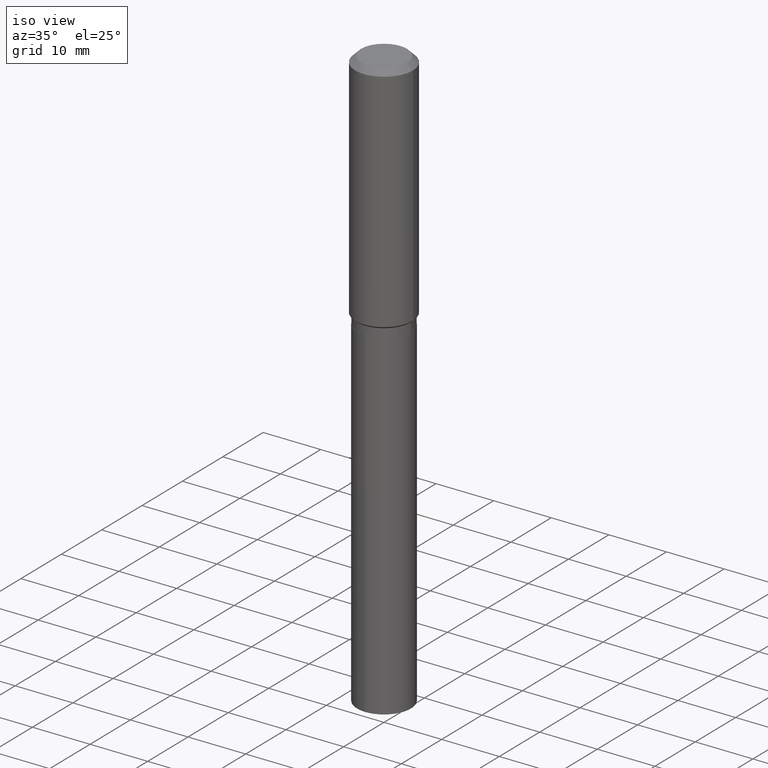
[diagram: clean part render]
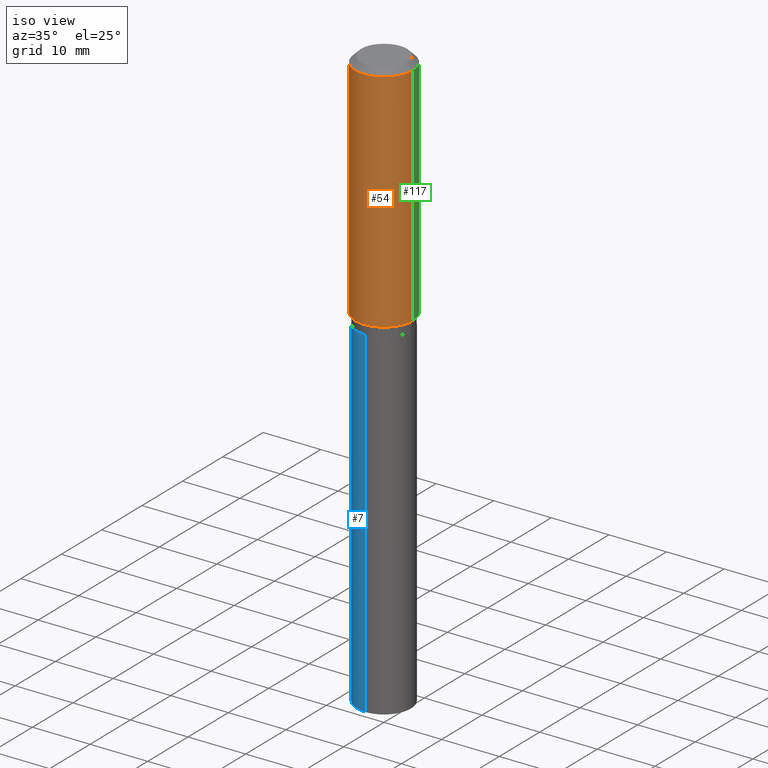
[diagram: same view with three faces highlighted in distinct colors, each labeled with its STEP entity id]
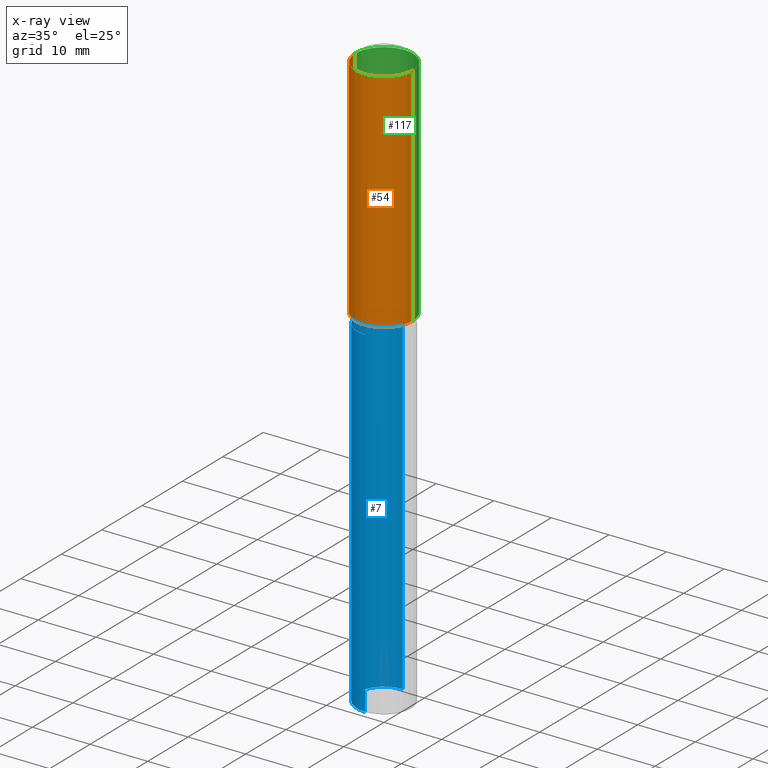
[diagram: x-ray of the same camera — body ghosted, the three highlighted faces saturated]
A machine part, iso view with three faces highlighted in distinct colors.
The next image is the same camera in x-ray (body ghosted, the three faces saturated) — at least one of them is partly hidden behind the body in this view.
Their STEP definitions:

[orange] entity #54 — the highlighted cylindrical surface (edge-blend (fillet) strip) has radius 5 mm, axis along (-0, 0, 1).
#32 = CIRCLE ( 'NONE', #450, 0.1968500000000002192 ) ;
#37 = CARTESIAN_POINT ( 'NONE',  ( -0.1968500000000000250, -1.436938108811090750E-15, -0.03937000000000029365 ) ) ;
#50 = AXIS2_PLACEMENT_3D ( 'NONE', #147, #64, #144 ) ;
#54 = ADVANCED_FACE ( 'NONE', ( #253 ), #487, .T. ) ;
#64 = DIRECTION ( 'NONE',  ( -2.445468806185136597E-29, 3.491481338843145583E-15, 1.000000000000000000 ) ) ;
#85 = CARTESIAN_POINT ( 'NONE',  ( 3.875945784363131396E-29, -5.533823347999442283E-15, -1.584949999999999637 ) ) ;
#94 = LINE ( 'NONE', #170, #96 ) ;
#96 = VECTOR ( 'NONE', #394, 39.37007874015748143 ) ;
#100 = VERTEX_POINT ( 'NONE', #221 ) ;
#101 = DIRECTION ( 'NONE',  ( 1.000000000000000000, -6.982962677686265922E-15, 0.000000000000000000 ) ) ;
#102 = DIRECTION ( 'NONE',  ( -2.445468806185136597E-29, 3.491481338843145583E-15, 1.000000000000000000 ) ) ;
#104 = DIRECTION ( 'NONE',  ( -2.445468806185136597E-29, 3.491481338843145583E-15, 1.000000000000000000 ) ) ;
#125 = DIRECTION ( 'NONE',  ( -2.445468806185136877E-29, 3.491481338843145188E-15, 1.000000000000000000 ) ) ;
#126 = VERTEX_POINT ( 'NONE', #37 ) ;
#130 = AXIS2_PLACEMENT_3D ( 'NONE', #265, #102, #372 ) ;
#144 = DIRECTION ( 'NONE',  ( 1.000000000000000000, -6.982962677686265922E-15, 0.000000000000000000 ) ) ;
#147 = CARTESIAN_POINT ( 'NONE',  ( 9.627810689950954155E-31, -1.374596203102556547E-16, -0.03937000000000029365 ) ) ;
#170 = CARTESIAN_POINT ( 'NONE',  ( 0.1968500000000001082, -1.374596203102542397E-15, 9.598753983154305062E-30 ) ) ;
#221 = CARTESIAN_POINT ( 'NONE',  ( 0.1968500000000000250, -1.512055823412797189E-15, -0.03937000000000029365 ) ) ;
#234 = CIRCLE ( 'NONE', #50, 0.1968500000000000250 ) ;
#238 = ORIENTED_EDGE ( 'NONE', *, *, #452, .T. ) ;
#251 = VERTEX_POINT ( 'NONE', #428 ) ;
#253 = FACE_OUTER_BOUND ( 'NONE', #336, .T. ) ;
#265 = CARTESIAN_POINT ( 'NONE',  ( 0.000000000000000000, 0.000000000000000000, 0.000000000000000000 ) ) ;
#316 = ORIENTED_EDGE ( 'NONE', *, *, #322, .F. ) ;
#322 = EDGE_CURVE ( 'NONE', #383, #126, #356, .T. ) ;
#323 = CARTESIAN_POINT ( 'NONE',  ( -0.1968500000000002192, -4.135119972655683706E-15, -1.584949999999999637 ) ) ;
#336 = EDGE_LOOP ( 'NONE', ( #316, #238, #471, #391 ) ) ;
#356 = LINE ( 'NONE', #473, #490 ) ;
#372 = DIRECTION ( 'NONE',  ( 1.000000000000000000, -6.982962677686266711E-15, 4.876176775795935793E-29 ) ) ;
#383 = VERTEX_POINT ( 'NONE', #323 ) ;
#391 = ORIENTED_EDGE ( 'NONE', *, *, #476, .F. ) ;
#394 = DIRECTION ( 'NONE',  ( -2.445468806185136877E-29, 3.491481338843145188E-15, 1.000000000000000000 ) ) ;
#405 = EDGE_CURVE ( 'NONE', #251, #100, #94, .T. ) ;
#428 = CARTESIAN_POINT ( 'NONE',  ( 0.1968500000000002192, -6.908419551101985469E-15, -1.584949999999999637 ) ) ;
#450 = AXIS2_PLACEMENT_3D ( 'NONE', #85, #104, #101 ) ;
#452 = EDGE_CURVE ( 'NONE', #383, #251, #32, .T. ) ;
#471 = ORIENTED_EDGE ( 'NONE', *, *, #405, .T. ) ;
#473 = CARTESIAN_POINT ( 'NONE',  ( -0.1968500000000001082, 1.398703375343757985E-15, -9.682923725166787881E-30 ) ) ;
#476 = EDGE_CURVE ( 'NONE', #126, #100, #234, .T. ) ;
#487 = CYLINDRICAL_SURFACE ( 'NONE', #130, 0.1968500000000001082 ) ;
#490 = VECTOR ( 'NONE', #125, 39.37007874015748143 ) ;

[blue] entity #7 — the highlighted cylindrical surface (edge-blend (fillet) strip) has radius 4.6736 mm, axis along (-0, 0, 1).
#1 = EDGE_CURVE ( 'NONE', #282, #129, #23, .T. ) ;
#7 = ADVANCED_FACE ( 'NONE', ( #436 ), #93, .T. ) ;
#17 = DIRECTION ( 'NONE',  ( -6.982962677686265133E-15, -1.000000000000000000, 2.969399993113329585E-15 ) ) ;
#21 = LINE ( 'NONE', #207, #214 ) ;
#23 = LINE ( 'NONE', #134, #401 ) ;
#52 = DIRECTION ( 'NONE',  ( -2.445540233102860963E-29, 3.491379051431596489E-15, 1.000000000000000000 ) ) ;
#55 = CARTESIAN_POINT ( 'NONE',  ( 1.307398633798681744E-15, 0.1839999999999941960, -1.653400000000000203 ) ) ;
#65 = CARTESIAN_POINT ( 'NONE',  ( -1.284865132694232346E-15, -0.1840000000000057701, -1.653399999999999093 ) ) ;
#93 = CYLINDRICAL_SURFACE ( 'NONE', #258, 0.1839999999999999969 ) ;
#116 = ORIENTED_EDGE ( 'NONE', *, *, #415, .T. ) ;
#129 = VERTEX_POINT ( 'NONE', #65 ) ;
#131 = AXIS2_PLACEMENT_3D ( 'NONE', #164, #245, #399 ) ;
#134 = CARTESIAN_POINT ( 'NONE',  ( -1.284865132694232346E-15, -0.1840000000000057701, -1.653399999999999093 ) ) ;
#156 = CARTESIAN_POINT ( 'NONE',  ( -1.284865132694176140E-15, -0.1840000000000139302, -3.982520472486849705 ) ) ;
#164 = CARTESIAN_POINT ( 'NONE',  ( 9.739295947356642418E-29, -1.390465767154430748E-14, -3.982520472486850593 ) ) ;
#165 = EDGE_LOOP ( 'NONE', ( #380, #116, #186, #362 ) ) ;
#186 = ORIENTED_EDGE ( 'NONE', *, *, #1, .T. ) ;
#207 = CARTESIAN_POINT ( 'NONE',  ( 1.307398633798624552E-15, 0.1839999999999942237, -1.653400000000000203 ) ) ;
#214 = VECTOR ( 'NONE', #239, 39.37007874015748143 ) ;
#239 = DIRECTION ( 'NONE',  ( -2.445540233102860683E-29, 3.491379051431596884E-15, 1.000000000000000000 ) ) ;
#245 = DIRECTION ( 'NONE',  ( -2.445540233102860963E-29, 3.491379051431596489E-15, 1.000000000000000000 ) ) ;
#246 = CARTESIAN_POINT ( 'NONE',  ( 4.043338124146503856E-29, -5.772815245643255193E-15, -1.653399999999999537 ) ) ;
#258 = AXIS2_PLACEMENT_3D ( 'NONE', #246, #373, #329 ) ;
#263 = VERTEX_POINT ( 'NONE', #382 ) ;
#282 = VERTEX_POINT ( 'NONE', #156 ) ;
#307 = EDGE_CURVE ( 'NONE', #263, #369, #21, .T. ) ;
#325 = EDGE_CURVE ( 'NONE', #369, #129, #483, .T. ) ;
#329 = DIRECTION ( 'NONE',  ( -6.982962677686265133E-15, -1.000000000000000000, 2.969399993113329585E-15 ) ) ;
#334 = CIRCLE ( 'NONE', #131, 0.1839999999999999969 ) ;
#362 = ORIENTED_EDGE ( 'NONE', *, *, #325, .F. ) ;
#369 = VERTEX_POINT ( 'NONE', #55 ) ;
#373 = DIRECTION ( 'NONE',  ( -2.445540233102860963E-29, 3.491379051431596489E-15, 1.000000000000000000 ) ) ;
#380 = ORIENTED_EDGE ( 'NONE', *, *, #307, .F. ) ;
#382 = CARTESIAN_POINT ( 'NONE',  ( 1.307398633798681941E-15, 0.1839999999999861746, -3.982520472486851038 ) ) ;
#399 = DIRECTION ( 'NONE',  ( -6.982962677686265133E-15, -1.000000000000000000, 2.969399993113329585E-15 ) ) ;
#401 = VECTOR ( 'NONE', #479, 39.37007874015748143 ) ;
#415 = EDGE_CURVE ( 'NONE', #263, #282, #334, .T. ) ;
#436 = FACE_OUTER_BOUND ( 'NONE', #165, .T. ) ;
#442 = AXIS2_PLACEMENT_3D ( 'NONE', #478, #52, #17 ) ;
#478 = CARTESIAN_POINT ( 'NONE',  ( 4.043338124146503856E-29, -5.772815245643255193E-15, -1.653399999999999537 ) ) ;
#479 = DIRECTION ( 'NONE',  ( -2.445540233102860683E-29, 3.491379051431596884E-15, 1.000000000000000000 ) ) ;
#483 = CIRCLE ( 'NONE', #442, 0.1839999999999999969 ) ;

[green] entity #117 — the highlighted cylindrical surface (edge-blend (fillet) strip) has radius 5 mm, axis along (-0, 0, 1).
#18 = ORIENTED_EDGE ( 'NONE', *, *, #304, .F. ) ;
#19 = CARTESIAN_POINT ( 'NONE',  ( 3.875945784363131396E-29, -5.533823347999442283E-15, -1.584949999999999637 ) ) ;
#37 = CARTESIAN_POINT ( 'NONE',  ( -0.1968500000000000250, -1.436938108811090750E-15, -0.03937000000000029365 ) ) ;
#43 = ORIENTED_EDGE ( 'NONE', *, *, #331, .T. ) ;
#94 = LINE ( 'NONE', #170, #96 ) ;
#96 = VECTOR ( 'NONE', #394, 39.37007874015748143 ) ;
#97 = DIRECTION ( 'NONE',  ( -2.445468806185136597E-29, 3.491481338843145583E-15, 1.000000000000000000 ) ) ;
#100 = VERTEX_POINT ( 'NONE', #221 ) ;
#117 = ADVANCED_FACE ( 'NONE', ( #143 ), #292, .T. ) ;
#120 = ORIENTED_EDGE ( 'NONE', *, *, #405, .F. ) ;
#125 = DIRECTION ( 'NONE',  ( -2.445468806185136877E-29, 3.491481338843145188E-15, 1.000000000000000000 ) ) ;
#126 = VERTEX_POINT ( 'NONE', #37 ) ;
#139 = CIRCLE ( 'NONE', #206, 0.1968500000000000250 ) ;
#143 = FACE_OUTER_BOUND ( 'NONE', #319, .T. ) ;
#150 = CARTESIAN_POINT ( 'NONE',  ( 9.627810689950954155E-31, -1.374596203102556547E-16, -0.03937000000000029365 ) ) ;
#155 = AXIS2_PLACEMENT_3D ( 'NONE', #19, #97, #280 ) ;
#170 = CARTESIAN_POINT ( 'NONE',  ( 0.1968500000000001082, -1.374596203102542397E-15, 9.598753983154305062E-30 ) ) ;
#206 = AXIS2_PLACEMENT_3D ( 'NONE', #150, #463, #320 ) ;
#221 = CARTESIAN_POINT ( 'NONE',  ( 0.1968500000000000250, -1.512055823412797189E-15, -0.03937000000000029365 ) ) ;
#251 = VERTEX_POINT ( 'NONE', #428 ) ;
#280 = DIRECTION ( 'NONE',  ( 1.000000000000000000, -6.982962677686265922E-15, 0.000000000000000000 ) ) ;
#281 = AXIS2_PLACEMENT_3D ( 'NONE', #288, #290, #449 ) ;
#288 = CARTESIAN_POINT ( 'NONE',  ( 0.000000000000000000, 0.000000000000000000, 0.000000000000000000 ) ) ;
#290 = DIRECTION ( 'NONE',  ( -2.445468806185136597E-29, 3.491481338843145583E-15, 1.000000000000000000 ) ) ;
#292 = CYLINDRICAL_SURFACE ( 'NONE', #281, 0.1968500000000001082 ) ;
#304 = EDGE_CURVE ( 'NONE', #100, #126, #139, .T. ) ;
#319 = EDGE_LOOP ( 'NONE', ( #43, #475, #18, #120 ) ) ;
#320 = DIRECTION ( 'NONE',  ( 1.000000000000000000, -6.982962677686265922E-15, 0.000000000000000000 ) ) ;
#322 = EDGE_CURVE ( 'NONE', #383, #126, #356, .T. ) ;
#323 = CARTESIAN_POINT ( 'NONE',  ( -0.1968500000000002192, -4.135119972655683706E-15, -1.584949999999999637 ) ) ;
#331 = EDGE_CURVE ( 'NONE', #251, #383, #343, .T. ) ;
#343 = CIRCLE ( 'NONE', #155, 0.1968500000000002192 ) ;
#356 = LINE ( 'NONE', #473, #490 ) ;
#383 = VERTEX_POINT ( 'NONE', #323 ) ;
#394 = DIRECTION ( 'NONE',  ( -2.445468806185136877E-29, 3.491481338843145188E-15, 1.000000000000000000 ) ) ;
#405 = EDGE_CURVE ( 'NONE', #251, #100, #94, .T. ) ;
#428 = CARTESIAN_POINT ( 'NONE',  ( 0.1968500000000002192, -6.908419551101985469E-15, -1.584949999999999637 ) ) ;
#449 = DIRECTION ( 'NONE',  ( 1.000000000000000000, -6.982962677686266711E-15, 4.876176775795935793E-29 ) ) ;
#463 = DIRECTION ( 'NONE',  ( -2.445468806185136597E-29, 3.491481338843145583E-15, 1.000000000000000000 ) ) ;
#473 = CARTESIAN_POINT ( 'NONE',  ( -0.1968500000000001082, 1.398703375343757985E-15, -9.682923725166787881E-30 ) ) ;
#475 = ORIENTED_EDGE ( 'NONE', *, *, #322, .T. ) ;
#490 = VECTOR ( 'NONE', #125, 39.37007874015748143 ) ;